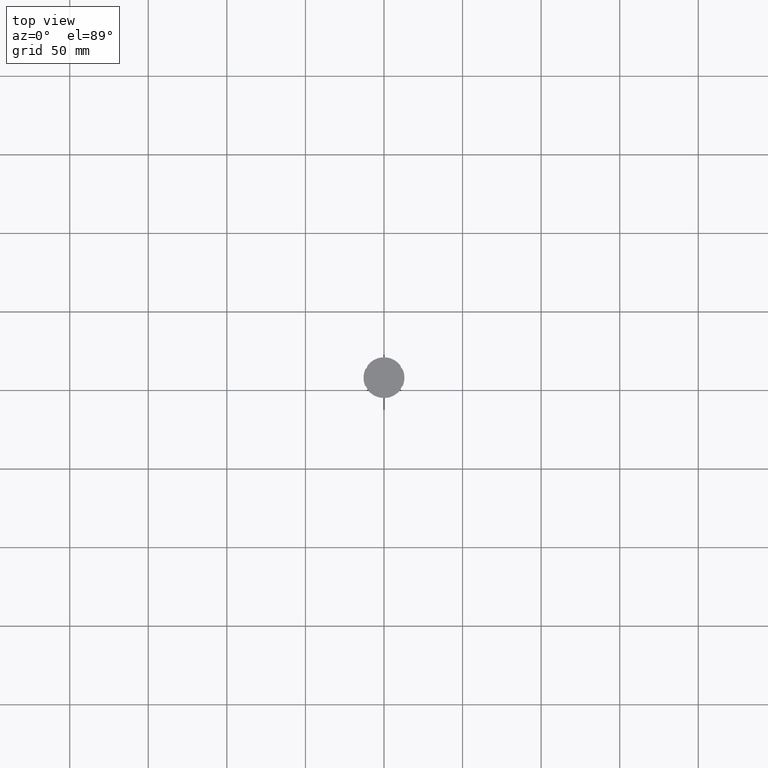
[diagram: clean part render]
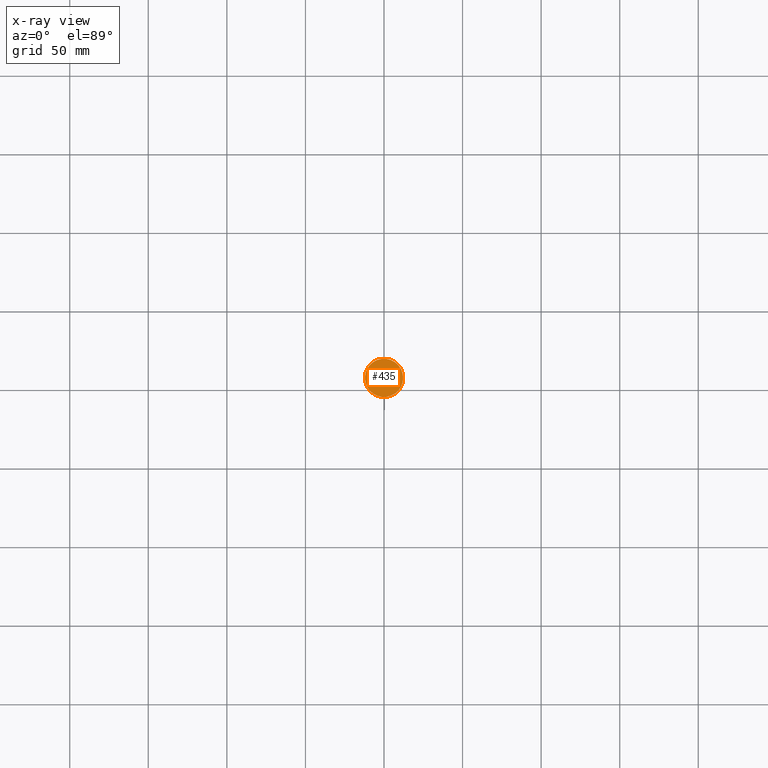
[diagram: x-ray — body ghosted, one internal face saturated and labeled with its STEP entity id]
A machine part, top view, then the same camera in x-ray: the body is ghosted and one INTERNAL B-rep face — a face not visible from any outside direction — is saturated and labeled: STEP entity #435.
In plain terms, the highlighted planar face has unit normal (0, 0, -1).
Its self-contained STEP definition (entity closure, byte-faithful):
#74 = DIRECTION ( 'NONE',  ( -1.000000000000000000, 0.000000000000000000, 0.000000000000000000 ) ) ;
#211 = DIRECTION ( 'NONE',  ( -1.000000000000000000, 0.000000000000000000, 0.000000000000000000 ) ) ;
#351 = EDGE_CURVE ( 'NONE', #2854, #1944, #1943, .T. ) ;
#435 = ADVANCED_FACE ( 'NONE', ( #1079 ), #2192, .F. ) ;
#457 = CARTESIAN_POINT ( 'NONE',  ( 0.000000000000000000, 0.000000000000000000, -12.00000000000000000 ) ) ;
#525 = EDGE_LOOP ( 'NONE', ( #932, #1930 ) ) ;
#550 = EDGE_CURVE ( 'NONE', #1944, #2854, #601, .T. ) ;
#601 = CIRCLE ( 'NONE', #2455, 12.20000000000000639 ) ;
#688 = CARTESIAN_POINT ( 'NONE',  ( 0.000000000000000000, 0.000000000000000000, -12.00000000000000000 ) ) ;
#723 = CARTESIAN_POINT ( 'NONE',  ( 12.20000000000000639, 1.512438796946981880E-15, -12.00000000000000000 ) ) ;
#932 = ORIENTED_EDGE ( 'NONE', *, *, #550, .T. ) ;
#1079 = FACE_OUTER_BOUND ( 'NONE', #525, .T. ) ;
#1090 = DIRECTION ( 'NONE',  ( -1.000000000000000000, 0.000000000000000000, -0.000000000000000000 ) ) ;
#1159 = AXIS2_PLACEMENT_3D ( 'NONE', #688, #2871, #1090 ) ;
#1281 = CARTESIAN_POINT ( 'NONE',  ( -12.20000000000000639, 0.000000000000000000, -12.00000000000000000 ) ) ;
#1608 = DIRECTION ( 'NONE',  ( -0.000000000000000000, -0.000000000000000000, 1.000000000000000000 ) ) ;
#1930 = ORIENTED_EDGE ( 'NONE', *, *, #351, .T. ) ;
#1943 = CIRCLE ( 'NONE', #1987, 12.20000000000000639 ) ;
#1944 = VERTEX_POINT ( 'NONE', #1281 ) ;
#1987 = AXIS2_PLACEMENT_3D ( 'NONE', #457, #2162, #211 ) ;
#2030 = CARTESIAN_POINT ( 'NONE',  ( 0.000000000000000000, 0.000000000000000000, -12.00000000000000000 ) ) ;
#2162 = DIRECTION ( 'NONE',  ( -0.000000000000000000, -0.000000000000000000, 1.000000000000000000 ) ) ;
#2192 = PLANE ( 'NONE',  #1159 ) ;
#2455 = AXIS2_PLACEMENT_3D ( 'NONE', #2030, #1608, #74 ) ;
#2854 = VERTEX_POINT ( 'NONE', #723 ) ;
#2871 = DIRECTION ( 'NONE',  ( 0.000000000000000000, 0.000000000000000000, -1.000000000000000000 ) ) ;